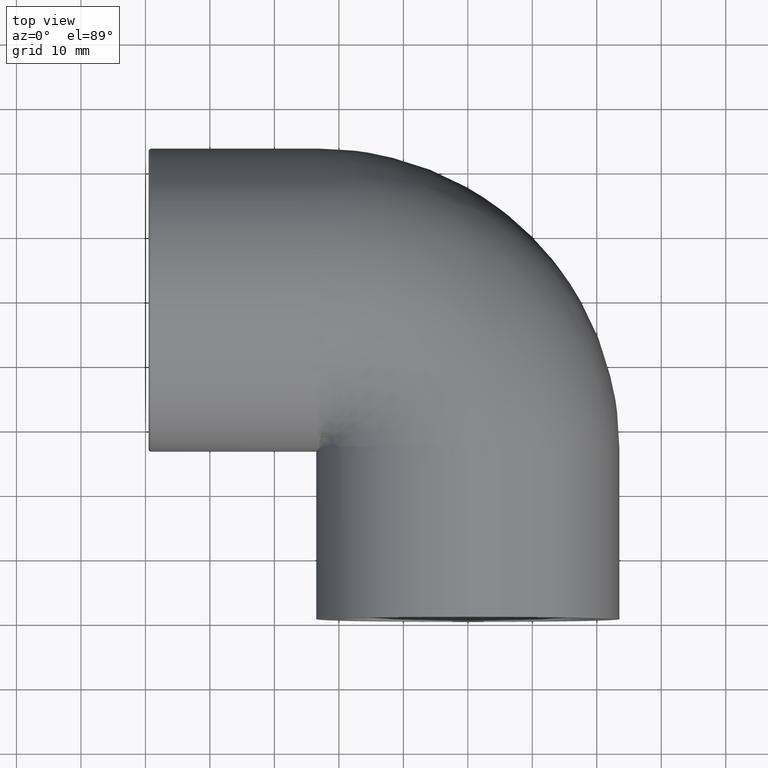
[diagram: clean part render]
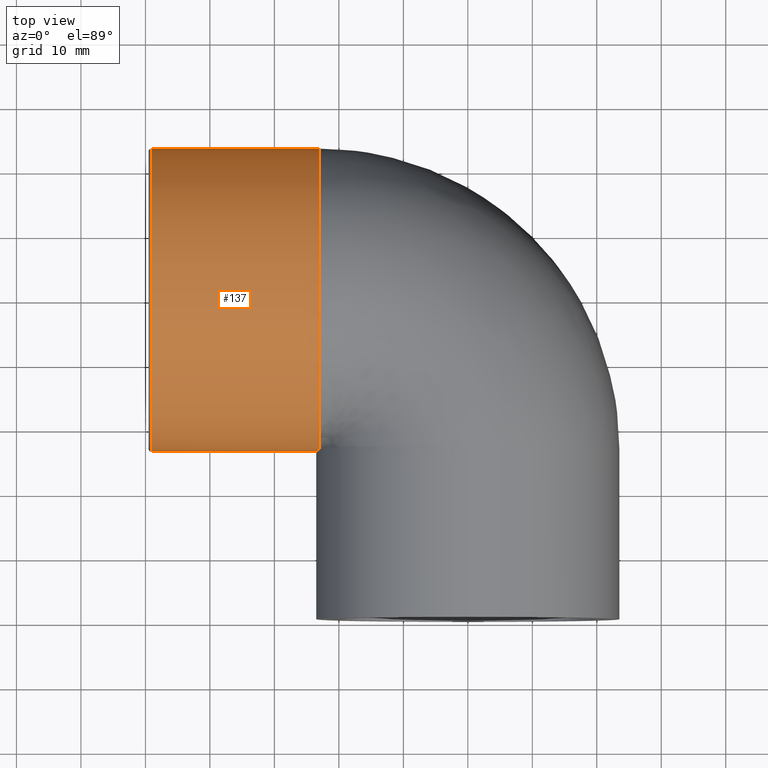
[diagram: same view with one face highlighted and labeled with its STEP entity id]
A machine part, top view. The second image highlights one B-rep face of the part: STEP entity #137.
In plain terms, the highlighted cylindrical surface (bore or boss wall) has radius 23.5 mm, axis along (1, 0, 0).
Its self-contained STEP definition (entity closure, byte-faithful):
#15=ELLIPSE('',#154,33.2340187157677,23.5);
#24=CYLINDRICAL_SURFACE('',#161,23.5);
#34=FACE_BOUND('',#66,.T.);
#45=FACE_OUTER_BOUND('',#65,.T.);
#65=EDGE_LOOP('',(#122,#123));
#66=EDGE_LOOP('',(#124));
#73=CIRCLE('',#151,23.5);
#77=CIRCLE('',#159,23.5);
#84=VERTEX_POINT('',#253);
#85=VERTEX_POINT('',#254);
#88=VERTEX_POINT('',#265);
#95=EDGE_CURVE('',#84,#85,#73,.T.);
#97=EDGE_CURVE('',#84,#85,#15,.T.);
#100=EDGE_CURVE('',#88,#88,#77,.T.);
#122=ORIENTED_EDGE('',*,*,#97,.T.);
#123=ORIENTED_EDGE('',*,*,#95,.F.);
#124=ORIENTED_EDGE('',*,*,#100,.F.);
#137=ADVANCED_FACE('',(#45,#34),#24,.T.);
#151=AXIS2_PLACEMENT_3D('',#255,#186,#187);
#154=AXIS2_PLACEMENT_3D('',#258,#192,#193);
#159=AXIS2_PLACEMENT_3D('',#266,#202,#203);
#161=AXIS2_PLACEMENT_3D('',#268,#206,#207);
#186=DIRECTION('center_axis',(1.,0.,0.));
#187=DIRECTION('ref_axis',(0.,0.,-1.));
#192=DIRECTION('center_axis',(-0.707106781186548,0.707106781186548,0.));
#193=DIRECTION('ref_axis',(-0.707106781186547,-0.707106781186547,0.));
#202=DIRECTION('center_axis',(-1.,0.,0.));
#203=DIRECTION('ref_axis',(0.,-1.,1.83697019872103E-16));
#206=DIRECTION('center_axis',(1.,0.,0.));
#207=DIRECTION('ref_axis',(0.,1.,0.));
#253=CARTESIAN_POINT('',(-23.,-23.,-4.82182538049642));
#254=CARTESIAN_POINT('',(-23.,-23.,4.82182538049642));
#255=CARTESIAN_POINT('Origin',(-23.,0.,0.));
#258=CARTESIAN_POINT('Origin',(0.,0.,0.));
#265=CARTESIAN_POINT('',(-49.1,23.5,-7.1947999449907E-15));
#266=CARTESIAN_POINT('Origin',(-49.1,0.,0.));
#268=CARTESIAN_POINT('Origin',(-36.25,0.,0.));